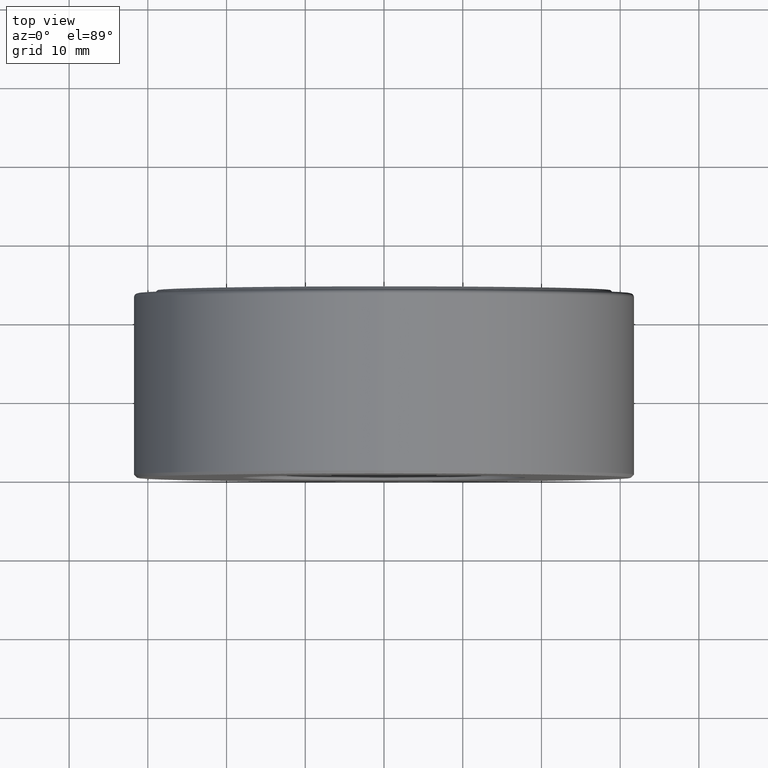
[diagram: clean part render]
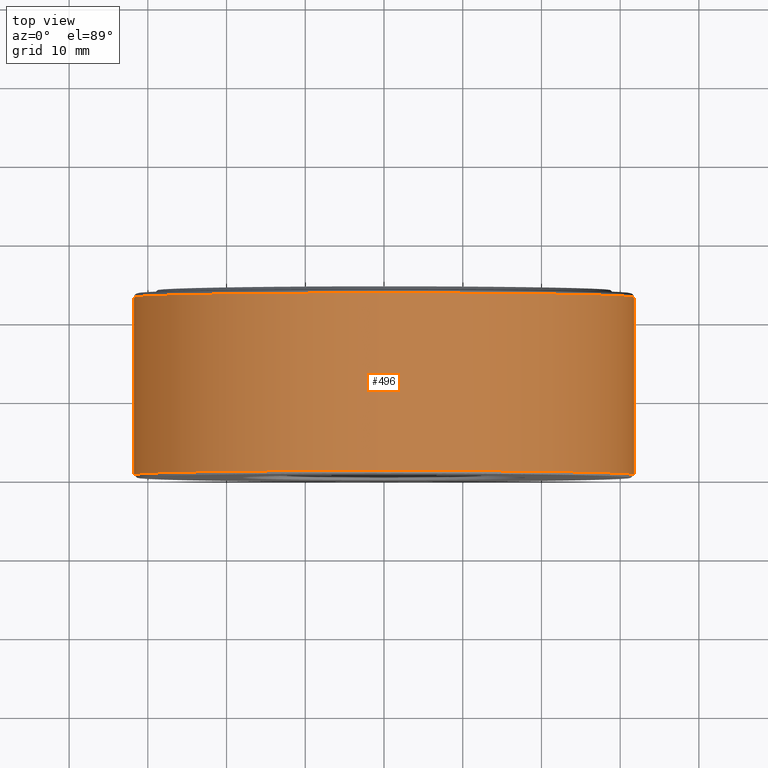
[diagram: same view with one face highlighted and labeled with its STEP entity id]
A machine part, top view. The second image highlights one B-rep face of the part: STEP entity #496.
In plain terms, the highlighted cylindrical surface (bore or boss wall) has radius 31.75 mm, axis along (-0, 1, -0).
Its self-contained STEP definition (entity closure, byte-faithful):
#2 = DIRECTION ( 'NONE',  ( 0.0000000000000000000, 0.0000000000000000000, 1.000000000000000000 ) ) ;
#15 = ORIENTED_EDGE ( 'NONE', *, *, #307, .F. ) ;
#19 = DIRECTION ( 'NONE',  ( 0.0000000000000000000, 0.0000000000000000000, 1.000000000000000000 ) ) ;
#22 = CIRCLE ( 'NONE', #460, 1.250000000000000000 ) ;
#24 = CARTESIAN_POINT ( 'NONE',  ( 0.0000000000000000000, 0.01499999999999997700, 1.250000000000000000 ) ) ;
#30 = EDGE_LOOP ( 'NONE', ( #15 ) ) ;
#65 = CARTESIAN_POINT ( 'NONE',  ( 0.0000000000000000000, 0.9024999999999998600, 0.0000000000000000000 ) ) ;
#80 = EDGE_CURVE ( 'NONE', #481, #481, #22, .T. ) ;
#108 = FACE_OUTER_BOUND ( 'NONE', #30, .T. ) ;
#131 = CARTESIAN_POINT ( 'NONE',  ( 0.0000000000000000000, 0.9024999999999998600, 1.250000000000000000 ) ) ;
#173 = DIRECTION ( 'NONE',  ( -0.0000000000000000000, 1.000000000000000000, -0.0000000000000000000 ) ) ;
#270 = DIRECTION ( 'NONE',  ( 0.0000000000000000000, 0.0000000000000000000, 1.000000000000000000 ) ) ;
#286 = EDGE_LOOP ( 'NONE', ( #479 ) ) ;
#307 = EDGE_CURVE ( 'NONE', #488, #488, #561, .T. ) ;
#327 = CARTESIAN_POINT ( 'NONE',  ( 0.0000000000000000000, 0.01499999999999997700, 0.0000000000000000000 ) ) ;
#349 = DIRECTION ( 'NONE',  ( -0.0000000000000000000, 1.000000000000000000, -0.0000000000000000000 ) ) ;
#363 = FACE_OUTER_BOUND ( 'NONE', #286, .T. ) ;
#383 = CYLINDRICAL_SURFACE ( 'NONE', #412, 1.250000000000000000 ) ;
#412 = AXIS2_PLACEMENT_3D ( 'NONE', #593, #173, #270 ) ;
#460 = AXIS2_PLACEMENT_3D ( 'NONE', #327, #521, #2 ) ;
#479 = ORIENTED_EDGE ( 'NONE', *, *, #80, .T. ) ;
#481 = VERTEX_POINT ( 'NONE', #24 ) ;
#488 = VERTEX_POINT ( 'NONE', #131 ) ;
#496 = ADVANCED_FACE ( 'NONE', ( #108, #363 ), #383, .T. ) ;
#521 = DIRECTION ( 'NONE',  ( -0.0000000000000000000, 1.000000000000000000, -0.0000000000000000000 ) ) ;
#545 = AXIS2_PLACEMENT_3D ( 'NONE', #65, #349, #19 ) ;
#561 = CIRCLE ( 'NONE', #545, 1.250000000000000000 ) ;
#593 = CARTESIAN_POINT ( 'NONE',  ( 0.0000000000000000000, 0.0000000000000000000, 0.0000000000000000000 ) ) ;